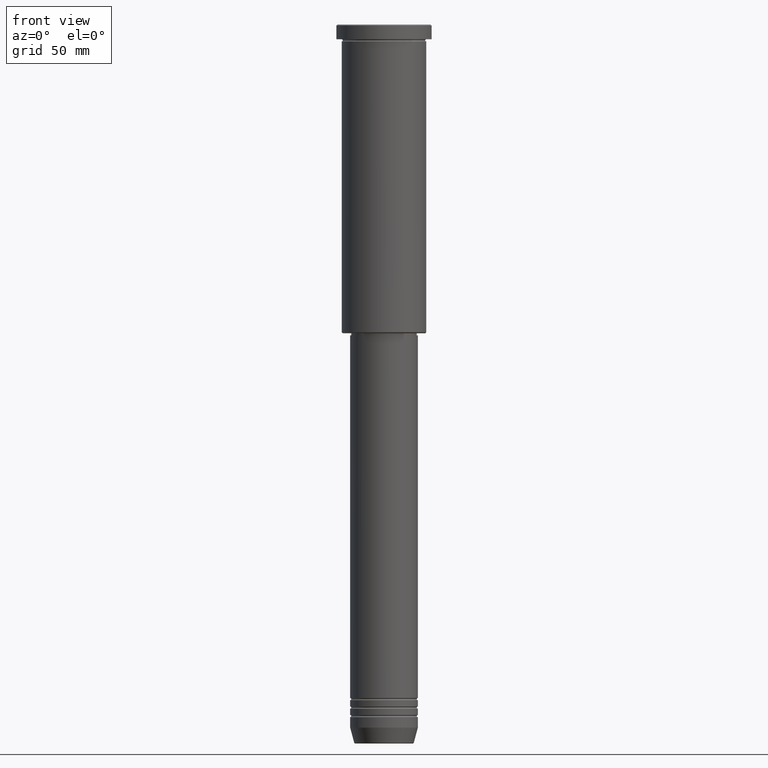
[diagram: clean part render]
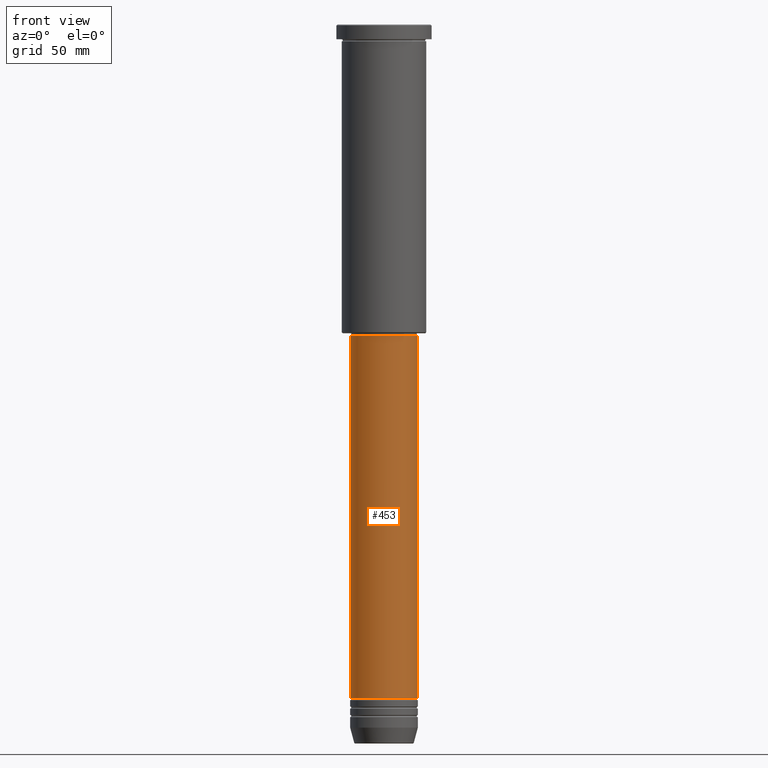
[diagram: same view with one face highlighted and labeled with its STEP entity id]
A machine part, front view. The second image highlights one B-rep face of the part: STEP entity #453.
In plain terms, the highlighted cylindrical surface (edge-blend (fillet) strip) has radius 16 mm, axis along (-0, -0, 1).
Its self-contained STEP definition (entity closure, byte-faithful):
#5 = DIRECTION ( 'NONE',  ( 1.000000000000000000, 0.000000000000000000, 0.000000000000000000 ) ) ;
#12 = CARTESIAN_POINT ( 'NONE',  ( 0.000000000000000000, 0.000000000000000000, -318.5000000000000000 ) ) ;
#17 = DIRECTION ( 'NONE',  ( -0.000000000000000000, -0.000000000000000000, 1.000000000000000000 ) ) ;
#19 = EDGE_CURVE ( 'NONE', #504, #351, #626, .T. ) ;
#83 = CIRCLE ( 'NONE', #1089, 16.00000000000000000 ) ;
#146 = VECTOR ( 'NONE', #920, 1000.000000000000000 ) ;
#150 = EDGE_CURVE ( 'NONE', #870, #857, #478, .T. ) ;
#195 = DIRECTION ( 'NONE',  ( 1.000000000000000000, 0.000000000000000000, 0.000000000000000000 ) ) ;
#267 = CARTESIAN_POINT ( 'NONE',  ( 16.00000000000000000, 0.000000000000000000, -318.5000000000000000 ) ) ;
#272 = CARTESIAN_POINT ( 'NONE',  ( -16.00000000000000000, 1.959434878635765131E-15, 0.000000000000000000 ) ) ;
#285 = DIRECTION ( 'NONE',  ( -0.000000000000000000, -0.000000000000000000, 1.000000000000000000 ) ) ;
#327 = CARTESIAN_POINT ( 'NONE',  ( -16.00000000000000000, 1.959434878635765131E-15, -318.5000000000000000 ) ) ;
#350 = ORIENTED_EDGE ( 'NONE', *, *, #150, .T. ) ;
#351 = VERTEX_POINT ( 'NONE', #830 ) ;
#354 = EDGE_CURVE ( 'NONE', #504, #870, #817, .T. ) ;
#355 = CARTESIAN_POINT ( 'NONE',  ( 16.00000000000000000, 0.000000000000000000, -146.9999999999999147 ) ) ;
#369 = CARTESIAN_POINT ( 'NONE',  ( 0.000000000000000000, 0.000000000000000000, -146.9999999999999147 ) ) ;
#373 = FACE_OUTER_BOUND ( 'NONE', #986, .T. ) ;
#380 = CARTESIAN_POINT ( 'NONE',  ( 0.000000000000000000, 0.000000000000000000, 0.000000000000000000 ) ) ;
#446 = EDGE_CURVE ( 'NONE', #351, #857, #83, .T. ) ;
#453 = ADVANCED_FACE ( 'NONE', ( #373 ), #999, .T. ) ;
#478 = LINE ( 'NONE', #639, #146 ) ;
#480 = ORIENTED_EDGE ( 'NONE', *, *, #19, .F. ) ;
#488 = AXIS2_PLACEMENT_3D ( 'NONE', #12, #1099, #646 ) ;
#504 = VERTEX_POINT ( 'NONE', #327 ) ;
#558 = DIRECTION ( 'NONE',  ( -0.000000000000000000, -0.000000000000000000, 1.000000000000000000 ) ) ;
#583 = AXIS2_PLACEMENT_3D ( 'NONE', #380, #285, #195 ) ;
#626 = LINE ( 'NONE', #272, #884 ) ;
#639 = CARTESIAN_POINT ( 'NONE',  ( 16.00000000000000000, 0.000000000000000000, 0.000000000000000000 ) ) ;
#646 = DIRECTION ( 'NONE',  ( 1.000000000000000000, 0.000000000000000000, 0.000000000000000000 ) ) ;
#700 = ORIENTED_EDGE ( 'NONE', *, *, #446, .F. ) ;
#796 = ORIENTED_EDGE ( 'NONE', *, *, #354, .T. ) ;
#817 = CIRCLE ( 'NONE', #488, 16.00000000000000000 ) ;
#830 = CARTESIAN_POINT ( 'NONE',  ( -16.00000000000000000, 1.959434878635765131E-15, -146.9999999999999147 ) ) ;
#857 = VERTEX_POINT ( 'NONE', #355 ) ;
#870 = VERTEX_POINT ( 'NONE', #267 ) ;
#884 = VECTOR ( 'NONE', #17, 1000.000000000000000 ) ;
#920 = DIRECTION ( 'NONE',  ( -0.000000000000000000, -0.000000000000000000, 1.000000000000000000 ) ) ;
#986 = EDGE_LOOP ( 'NONE', ( #480, #796, #350, #700 ) ) ;
#999 = CYLINDRICAL_SURFACE ( 'NONE', #583, 16.00000000000000000 ) ;
#1089 = AXIS2_PLACEMENT_3D ( 'NONE', #369, #558, #5 ) ;
#1099 = DIRECTION ( 'NONE',  ( -0.000000000000000000, -0.000000000000000000, 1.000000000000000000 ) ) ;